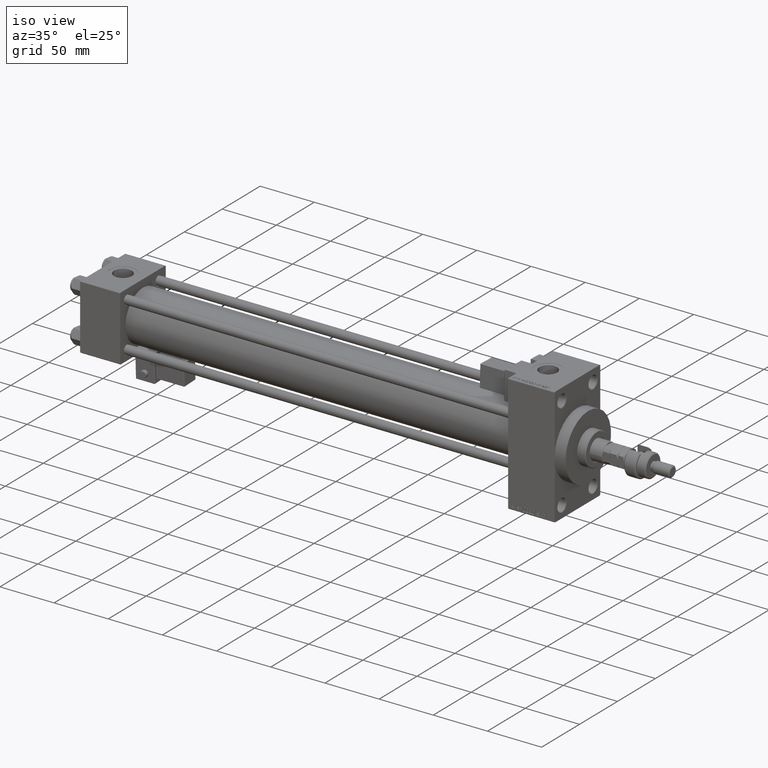
[diagram: clean part render]
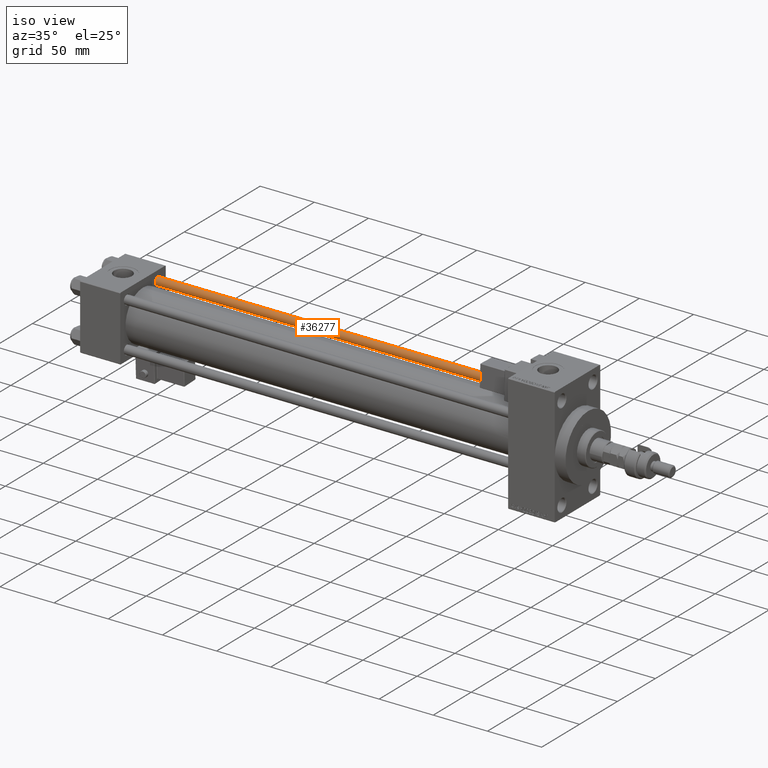
[diagram: same view with one face highlighted and labeled with its STEP entity id]
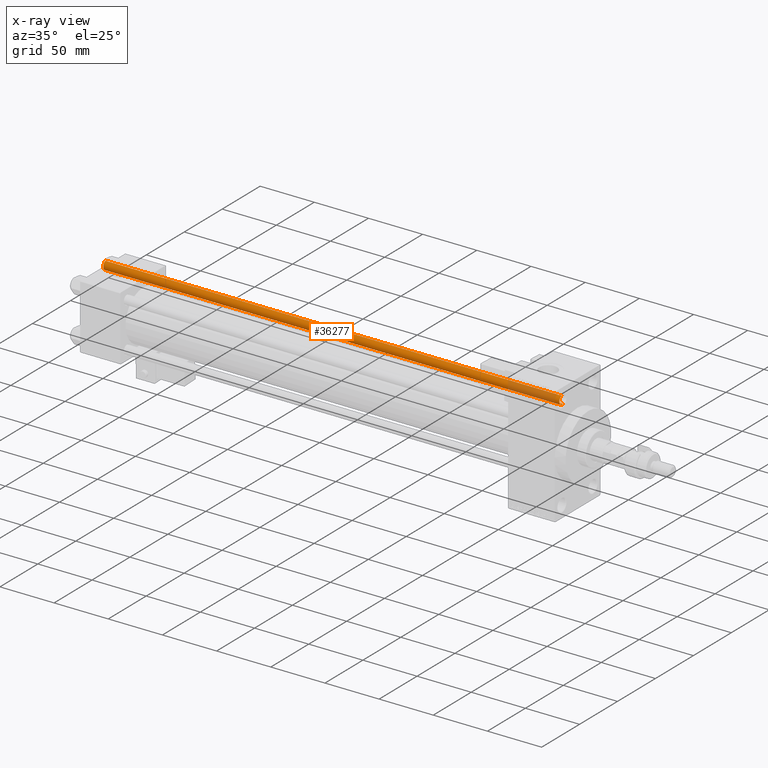
[diagram: x-ray of the same camera — body ghosted, the highlighted face saturated]
A machine part, iso view. The second image highlights one B-rep face of the part: STEP entity #36277.
The next image is the same camera in x-ray: the body ghosted, the highlighted face saturated — about 10% of this face is hidden behind the body in this view.
In plain terms, the highlighted cylindrical surface (edge-blend (fillet) strip) has radius 4 mm, axis along (-1, -0, 0).
Its self-contained STEP definition (entity closure, byte-faithful):
#4598 = EDGE_CURVE ( 'NONE', #22024, #25749, #35117, .T. ) ;
#5192 = VERTEX_POINT ( 'NONE', #15834 ) ;
#7324 = LINE ( 'NONE', #37526, #41567 ) ;
#7990 = CARTESIAN_POINT ( 'NONE',  ( -4.000000000000000000, 0.000000000000000000, 421.4999999999999432 ) ) ;
#8408 = DIRECTION ( 'NONE',  ( -0.000000000000000000, -0.000000000000000000, -1.000000000000000000 ) ) ;
#8473 = AXIS2_PLACEMENT_3D ( 'NONE', #40121, #41194, #28008 ) ;
#9418 = VERTEX_POINT ( 'NONE', #42889 ) ;
#9681 = AXIS2_PLACEMENT_3D ( 'NONE', #21949, #13200, #21164 ) ;
#12993 = ORIENTED_EDGE ( 'NONE', *, *, #4598, .T. ) ;
#13200 = DIRECTION ( 'NONE',  ( -0.000000000000000000, -0.000000000000000000, -1.000000000000000000 ) ) ;
#15834 = CARTESIAN_POINT ( 'NONE',  ( -4.000000000000000000, 0.000000000000000000, 0.5000000000001114664 ) ) ;
#16053 = ORIENTED_EDGE ( 'NONE', *, *, #22190, .T. ) ;
#17864 = EDGE_LOOP ( 'NONE', ( #22048, #12993, #33109, #16053 ) ) ;
#19943 = DIRECTION ( 'NONE',  ( -0.000000000000000000, -0.000000000000000000, -1.000000000000000000 ) ) ;
#20180 = EDGE_CURVE ( 'NONE', #25749, #5192, #41109, .T. ) ;
#21164 = DIRECTION ( 'NONE',  ( -1.000000000000000000, 0.000000000000000000, 0.000000000000000000 ) ) ;
#21949 = CARTESIAN_POINT ( 'NONE',  ( 0.000000000000000000, 0.000000000000000000, 422.0000000000000000 ) ) ;
#22024 = VERTEX_POINT ( 'NONE', #33798 ) ;
#22048 = ORIENTED_EDGE ( 'NONE', *, *, #46378, .F. ) ;
#22190 = EDGE_CURVE ( 'NONE', #5192, #9418, #28609, .T. ) ;
#23188 = CARTESIAN_POINT ( 'NONE',  ( 0.000000000000000000, 0.000000000000000000, 421.4999999999999432 ) ) ;
#25286 = CYLINDRICAL_SURFACE ( 'NONE', #9681, 4.000000000000000000 ) ;
#25552 = FACE_OUTER_BOUND ( 'NONE', #17864, .T. ) ;
#25749 = VERTEX_POINT ( 'NONE', #7990 ) ;
#28008 = DIRECTION ( 'NONE',  ( 1.000000000000000000, 0.000000000000000000, 0.000000000000000000 ) ) ;
#28609 = CIRCLE ( 'NONE', #8473, 4.000000000000000000 ) ;
#28996 = CARTESIAN_POINT ( 'NONE',  ( -4.000000000000000000, 0.000000000000000000, 422.0000000000000000 ) ) ;
#29508 = VECTOR ( 'NONE', #19943, 1000.000000000000000 ) ;
#33109 = ORIENTED_EDGE ( 'NONE', *, *, #20180, .T. ) ;
#33798 = CARTESIAN_POINT ( 'NONE',  ( 4.000000000000000000, 4.898587196589412829E-16, 421.4999999999999432 ) ) ;
#35117 = CIRCLE ( 'NONE', #48317, 4.000000000000000000 ) ;
#36277 = ADVANCED_FACE ( 'NONE', ( #25552 ), #25286, .T. ) ;
#37526 = CARTESIAN_POINT ( 'NONE',  ( 4.000000000000000000, 4.898587196589412829E-16, 422.0000000000000000 ) ) ;
#39973 = DIRECTION ( 'NONE',  ( 1.000000000000000000, 0.000000000000000000, 0.000000000000000000 ) ) ;
#40121 = CARTESIAN_POINT ( 'NONE',  ( 0.000000000000000000, 0.000000000000000000, 0.5000000000001114664 ) ) ;
#41109 = LINE ( 'NONE', #28996, #29508 ) ;
#41194 = DIRECTION ( 'NONE',  ( -0.000000000000000000, -0.000000000000000000, 1.000000000000000000 ) ) ;
#41567 = VECTOR ( 'NONE', #8408, 1000.000000000000000 ) ;
#42889 = CARTESIAN_POINT ( 'NONE',  ( 4.000000000000000000, 4.898587196589412829E-16, 0.5000000000001114664 ) ) ;
#46378 = EDGE_CURVE ( 'NONE', #22024, #9418, #7324, .T. ) ;
#48317 = AXIS2_PLACEMENT_3D ( 'NONE', #23188, #52595, #39973 ) ;
#52595 = DIRECTION ( 'NONE',  ( 0.000000000000000000, 0.000000000000000000, -1.000000000000000000 ) ) ;